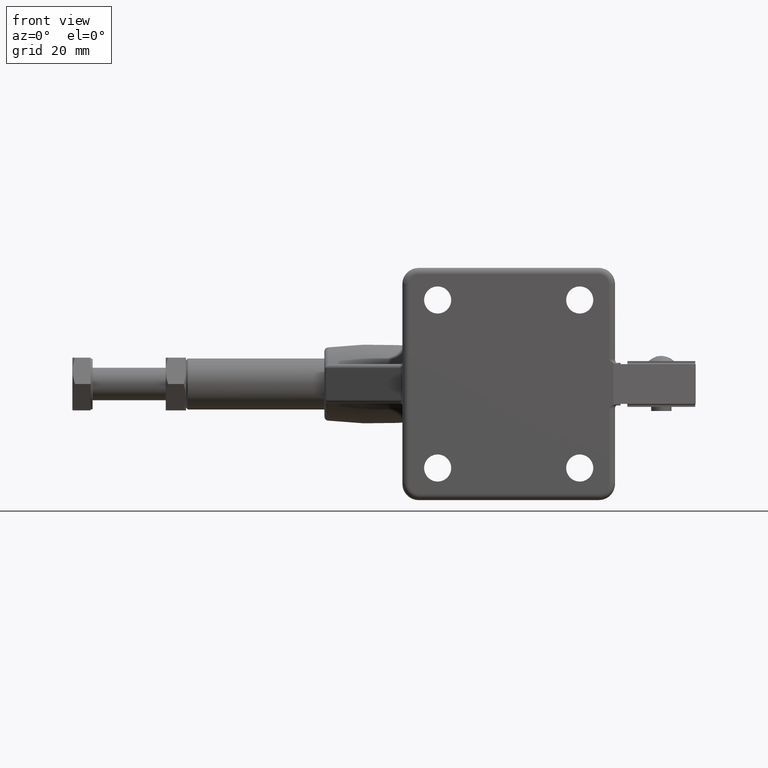
[diagram: clean part render]
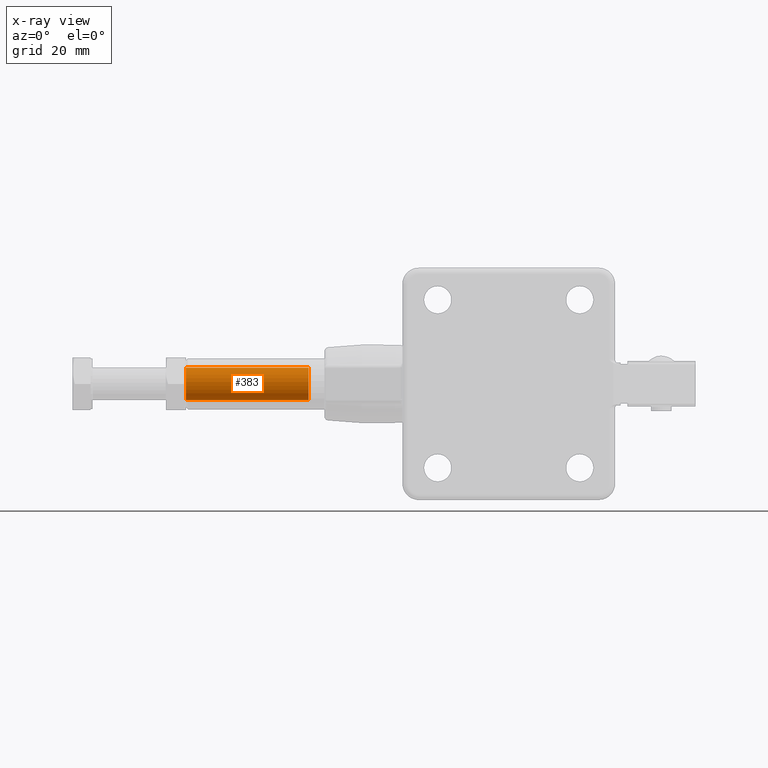
[diagram: x-ray — body ghosted, one internal face saturated and labeled with its STEP entity id]
A machine part, front view, then the same camera in x-ray: the body is ghosted and one INTERNAL B-rep face — a face not visible from any outside direction — is saturated and labeled: STEP entity #383.
In plain terms, the highlighted cylindrical surface (edge-blend (fillet) strip) has radius 4 mm, axis along (-1, -0, -0).
Its self-contained STEP definition (entity closure, byte-faithful):
#10 = VERTEX_POINT ( 'NONE', #9047 ) ;
#296 = FACE_OUTER_BOUND ( 'NONE', #787, .T. ) ;
#310 = CARTESIAN_POINT ( 'NONE',  ( -93.50347968802135800, 25.40000000000008700, -3.719593420145837800E-015 ) ) ;
#322 = CARTESIAN_POINT ( 'NONE',  ( -123.7434796880213700, 25.40000000000008700, -3.999999999999998200 ) ) ;
#383 = ADVANCED_FACE ( 'NONE', ( #296 ), #7786, .F. ) ;
#787 = EDGE_LOOP ( 'NONE', ( #6348, #833, #6472, #4719 ) ) ;
#820 = CIRCLE ( 'NONE', #6673, 3.999999999999993300 ) ;
#833 = ORIENTED_EDGE ( 'NONE', *, *, #7562, .T. ) ;
#1084 = DIRECTION ( 'NONE',  ( 0.0000000000000000000, 0.0000000000000000000, 1.000000000000000000 ) ) ;
#1148 = VECTOR ( 'NONE', #3590, 1000.000000000000000 ) ;
#2040 = VECTOR ( 'NONE', #2599, 1000.000000000000000 ) ;
#2208 = DIRECTION ( 'NONE',  ( 1.000000000000000000, -0.0000000000000000000, -0.0000000000000000000 ) ) ;
#2599 = DIRECTION ( 'NONE',  ( -1.000000000000000000, -0.0000000000000000000, -0.0000000000000000000 ) ) ;
#2645 = CARTESIAN_POINT ( 'NONE',  ( -93.50347968802135800, 25.40000000000008700, -3.999999999999996400 ) ) ;
#2846 = CARTESIAN_POINT ( 'NONE',  ( -123.7434796880213700, 25.40000000000008700, 3.999999999999991600 ) ) ;
#3272 = EDGE_CURVE ( 'NONE', #10, #4118, #7955, .T. ) ;
#3590 = DIRECTION ( 'NONE',  ( -1.000000000000000000, -0.0000000000000000000, -0.0000000000000000000 ) ) ;
#3991 = DIRECTION ( 'NONE',  ( -1.000000000000000000, -0.0000000000000000000, -0.0000000000000000000 ) ) ;
#4118 = VERTEX_POINT ( 'NONE', #5055 ) ;
#4719 = ORIENTED_EDGE ( 'NONE', *, *, #8660, .F. ) ;
#4912 = LINE ( 'NONE', #2846, #1148 ) ;
#5055 = CARTESIAN_POINT ( 'NONE',  ( -123.7034796880213500, 25.40000000000008700, -3.999999999999998200 ) ) ;
#5581 = DIRECTION ( 'NONE',  ( -1.000000000000000000, -0.0000000000000000000, -0.0000000000000000000 ) ) ;
#5975 = EDGE_CURVE ( 'NONE', #6068, #8649, #820, .T. ) ;
#6055 = LINE ( 'NONE', #322, #2040 ) ;
#6068 = VERTEX_POINT ( 'NONE', #2645 ) ;
#6348 = ORIENTED_EDGE ( 'NONE', *, *, #5975, .F. ) ;
#6472 = ORIENTED_EDGE ( 'NONE', *, *, #3272, .F. ) ;
#6673 = AXIS2_PLACEMENT_3D ( 'NONE', #310, #5581, #1084 ) ;
#6703 = CARTESIAN_POINT ( 'NONE',  ( -123.7034796880213500, 25.40000000000008700, -3.719593420145837800E-015 ) ) ;
#6978 = CARTESIAN_POINT ( 'NONE',  ( -123.7434796880213700, 25.40000000000008700, -3.719593420145837800E-015 ) ) ;
#7431 = DIRECTION ( 'NONE',  ( 0.0000000000000000000, 0.0000000000000000000, 1.000000000000000000 ) ) ;
#7562 = EDGE_CURVE ( 'NONE', #6068, #4118, #6055, .T. ) ;
#7567 = AXIS2_PLACEMENT_3D ( 'NONE', #6703, #2208, #7431 ) ;
#7786 = CYLINDRICAL_SURFACE ( 'NONE', #8196, 3.999999999999994700 ) ;
#7955 = CIRCLE ( 'NONE', #7567, 3.999999999999994700 ) ;
#8010 = CARTESIAN_POINT ( 'NONE',  ( -93.50347968802135800, 25.40000000000008700, 3.999999999999989800 ) ) ;
#8196 = AXIS2_PLACEMENT_3D ( 'NONE', #6978, #3991, #8452 ) ;
#8452 = DIRECTION ( 'NONE',  ( 0.0000000000000000000, 0.0000000000000000000, 1.000000000000000000 ) ) ;
#8649 = VERTEX_POINT ( 'NONE', #8010 ) ;
#8660 = EDGE_CURVE ( 'NONE', #8649, #10, #4912, .T. ) ;
#9047 = CARTESIAN_POINT ( 'NONE',  ( -123.7034796880213500, 25.40000000000008700, 3.999999999999991600 ) ) ;